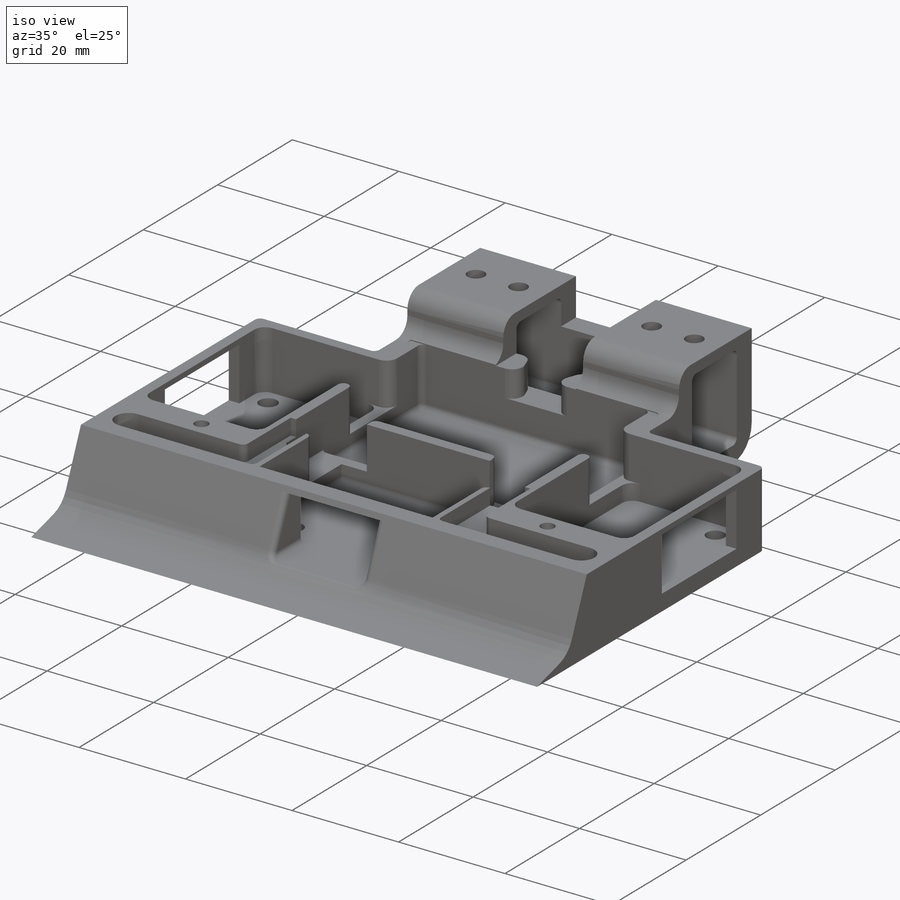
[diagram: iso view]
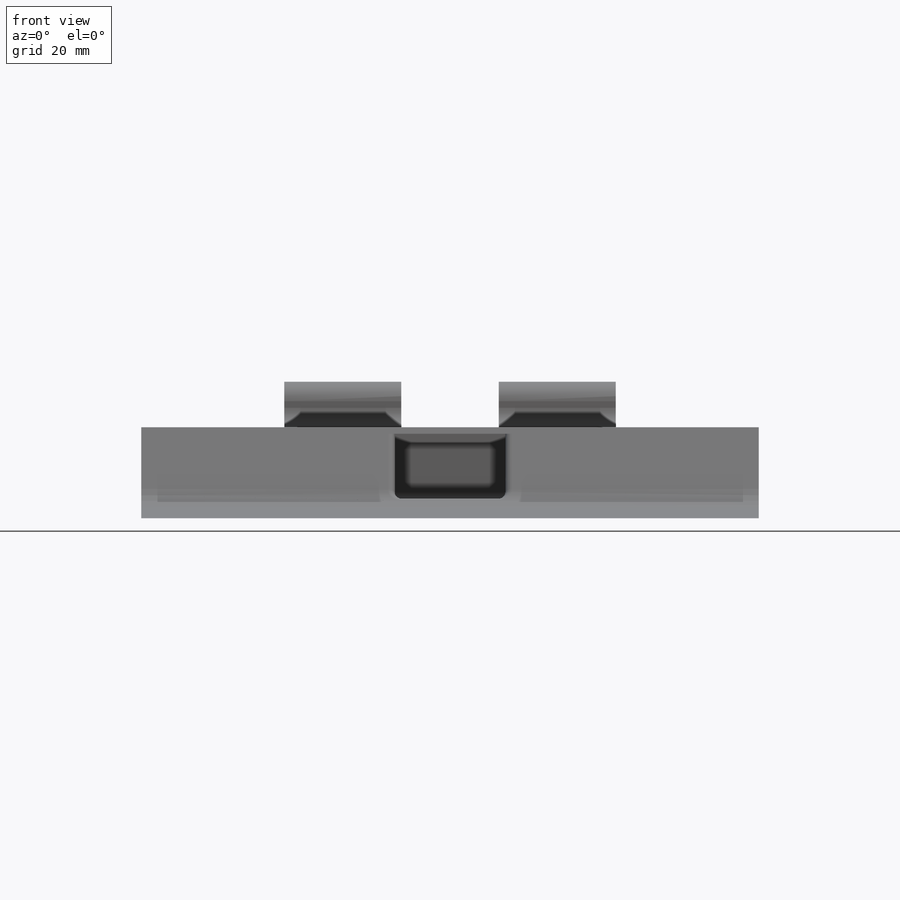
[diagram: front view]
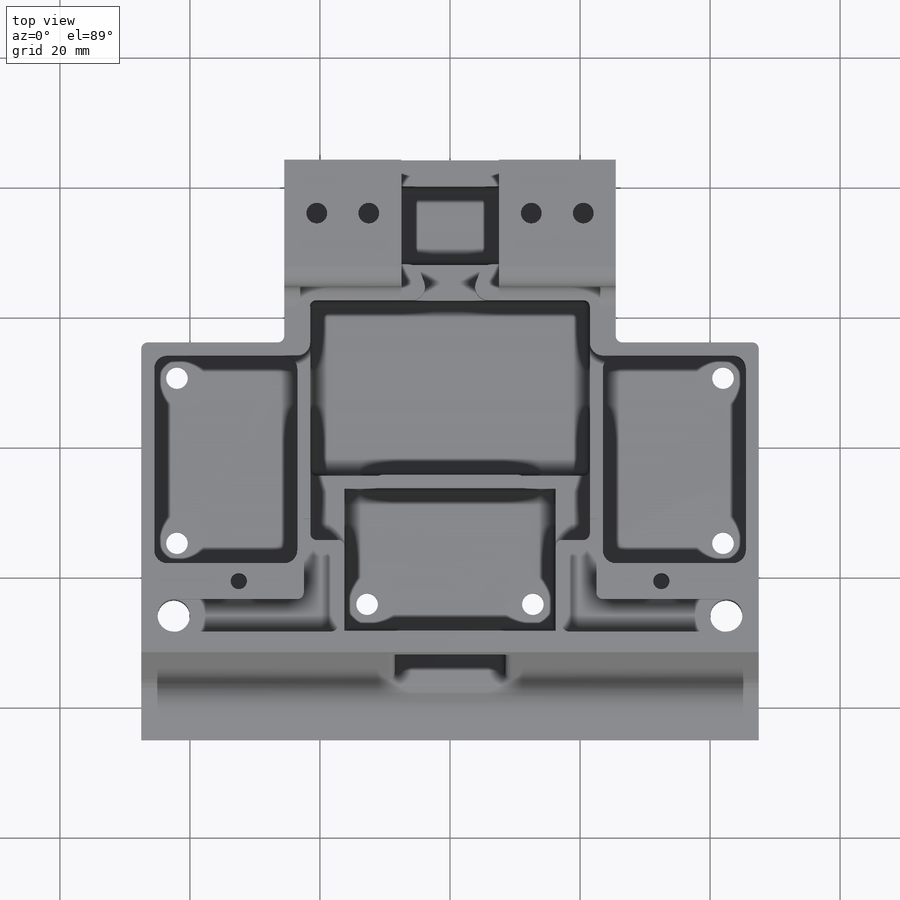
[diagram: top view]
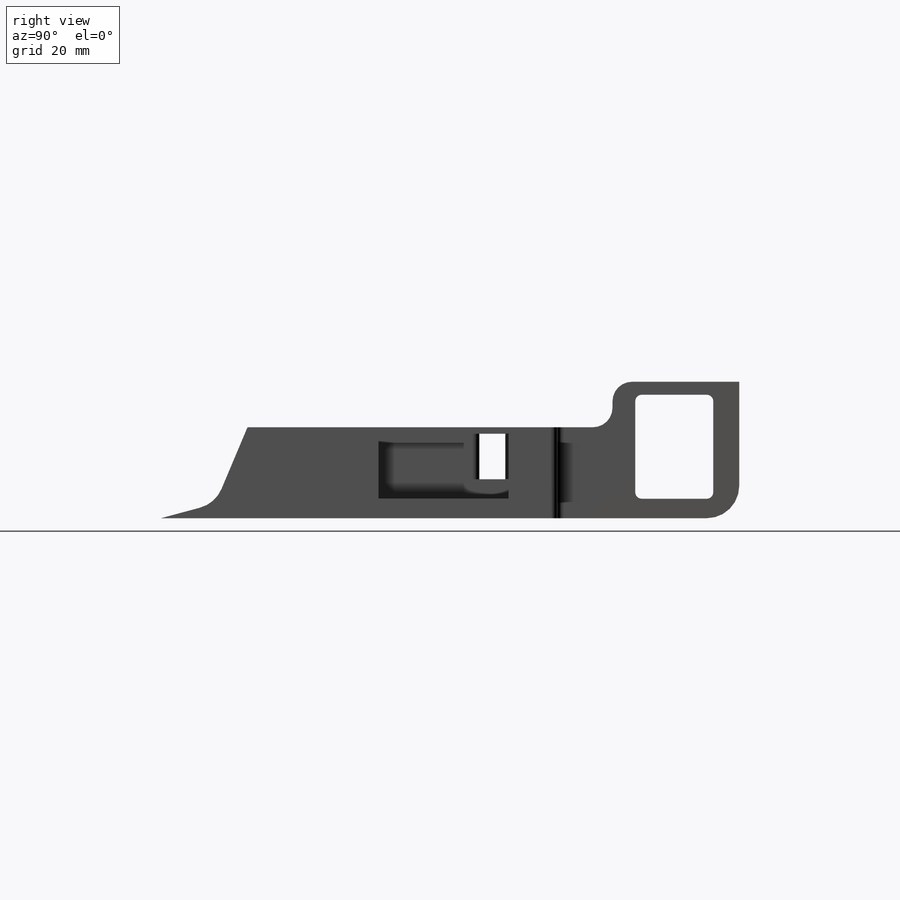
[diagram: right view]
SOLIDWORKS PART (.sldprt)
format: sldprt  version: not decoded by parser v0  size: 2,173,440 bytes
history: native  units: mm
features: sketch x78, cut_extrude x53, extrude x25, fillet x22, material x1 (+12 scaffold rows collapsed)
feature tree (191):
  scaffold x12  (default folders/planes/origin — collapsed)
  material  "Material <not specified>"
  sketch  "Sketch1"  dims[D1=95.0mm D2=90.0mm]
  extrude  "Boss-Extrude1"  Depth=17mm
  sketch  "Sketch6"  dims[D1=17.0mm D2=10.0mm D3=3.0mm D4=39.0mm D5=39.0mm]
  cut_extrude  "Cut-Extrude3"  Depth=100mm
  sketch  "Sketch7"
  cut_extrude  "Cut-Extrude6"  Depth=100mm
  fillet  "Fillet2"  Radius=5mm
  sketch  "Sketch8"  dims[D1=32.5mm D2=22.0mm D3=31.25mm D4=31.25mm D5=2.0mm D6=32.5mm]
  cut_extrude  "Cut-Extrude7"  Depth=14mm
  sketch  "Sketch9"  dims[D1=3.0mm]
  cut_extrude  "Cut-Extrude8"  Depth=100mm
  sketch  "Sketch10"  dims[D1=32.5mm D2=22.0mm D3=2.0mm D4=2.0mm]
  cut_extrude  "Cut-Extrude9"  Depth=11mm
  sketch  "Sketch13"  dims[D1=10.0mm D2=17.0mm D3=7.75mm D4=7.75mm D5=3.0mm]
  cut_extrude  "Cut-Extrude11"  Depth=11mm
  sketch  "Sketch14"  dims[D1=32.5mm D2=22.0mm D3=2.0mm D4=2.0mm]
  cut_extrude  "Cut-Extrude12"  Depth=11mm
  sketch  "Sketch15"  dims[D1=10.0mm D2=17.0mm D3=3.0mm D4=7.75mm]
  cut_extrude  "Cut-Extrude13"  Depth=11mm
  sketch  "Sketch16"  dims[D1=22.0mm D2=14.0mm]
  cut_extrude  "Cut-Extrude15"  Depth=34mm
  sketch  "Sketch17"  dims[D1=22.0mm]
  cut_extrude  "Cut-Extrude16"  Depth=34mm
  sketch  "Sketch19"  dims[D1=30.0mm]
  extrude  "Boss-Extrude2"  Depth=7mm
  sketch  "Sketch21"
  extrude  "Boss-Extrude3"  Depth=5mm
  sketch  "Sketch22"
  extrude  "Boss-Extrude4"  Depth=5mm
  sketch  "Sketch23"
  extrude  "Boss-Extrude5"  Depth=5mm
  sketch  "Sketch25"
  extrude  "Boss-Extrude6"  Depth=2mm
  sketch  "Sketch26"
  extrude  "Boss-Extrude7"  Depth=2mm
  sketch  "Sketch28"  dims[D1=16.0mm D2=12.0mm D3=3.0mm D4=10.0mm]
  cut_extrude  "Cut-Extrude17"  Depth=100mm
  sketch  "Sketch30"
  cut_extrude  "Cut-Extrude18"  Depth=2mm
  sketch  "Sketch31"
  cut_extrude  "Cut-Extrude19"  Depth=2mm
  sketch  "Sketch33"  dims[D1=3.5mm]
  cut_extrude  "Cut-Extrude21"  Depth=100mm
  sketch  "Sketch34"  dims[D1=2.0mm D2=2.0mm D3=4.0mm D4=4.0mm D5=2.0mm D6=2.0mm D7=2.0mm D8=2.0mm D9=2.0mm D10=2.0mm D11=2.0mm D12=2.0mm]
  cut_extrude  "Cut-Extrude23"  Depth=11mm
  sketch  "Sketch36"
  extrude  "Boss-Extrude8"  Depth=11mm
  sketch  "Sketch37"  dims[D1=15.0mm D2=18.0mm D3=18.0mm]
  cut_extrude  "Cut-Extrude24"  Depth=100mm
  sketch  "Sketch38"
  extrude  "Boss-Extrude9"  Depth=11mm
  sketch  "Sketch39"
  extrude  "Boss-Extrude10"  Depth=11mm
  fillet  "Fillet4"  Radius=3mm
  sketch  "Sketch40"  dims[D1=12.0mm D2=7.0mm]
  cut_extrude  "Cut-Extrude25"  Depth=8mm
  sketch  "Sketch41"  dims[D1=12.0mm D2=7.0mm]
  cut_extrude  "Cut-Extrude26"  Depth=8mm
  sketch  "Sketch45"  dims[D1=10.0mm D2=10.0mm D3=10.0mm D4=10.0mm]
  cut_extrude  "Cut-Extrude30"  Depth=8mm
  sketch  "Sketch46"  dims[c1.D1=~3.747102mm c1.D2=~3.747102mm c2.D1=4.0mm]
  cut_extrude  "Cut-Extrude31"  Depth=100mm
  fillet  "Fillet12"  Radius=5mm
  fillet  "Fillet13"  Radius=1mm
  fillet  "Fillet14"  Radius=1mm
  fillet  "Fillet15"  Radius=1mm
  sketch  "Sketch47"  dims[D1=10.0mm D2=2.5mm D3=2.0mm D4=2.0mm]
  cut_extrude  "Cut-Extrude32"  Depth=5mm
  fillet  "Fillet18"  Radius=2mm
  sketch  "Sketch48"  dims[D1=1.0mm D2=1.0mm D3=0.0mm D4=2.0mm]
  cut_extrude  "Cut-Extrude35"  Depth=3mm
  sketch  "Sketch51"  dims[D1=1.0mm D2=1.0mm D3=0.0mm D4=2.0mm D5=5.25mm]
  cut_extrude  "Cut-Extrude36"  Depth=3mm
  sketch  "Sketch53"  dims[D1=2.625mm D2=2.625mm]
  cut_extrude  "Cut-Extrude37"  Depth=100mm
  sketch  "Sketch54"  dims[D1=2.625mm D2=2.625mm]
  cut_extrude  "Cut-Extrude38"  Depth=100mm
  sketch  "Sketch55"  dims[D1=17.0mm D2=9.0mm D3=2.0mm D4=10.0mm]
  cut_extrude  "Cut-Extrude46"  Depth=3mm
  sketch  "Sketch61"
  extrude  "Boss-Extrude12"  Depth=14mm
  sketch  "Sketch62"  dims[D1=32.0mm D2=22.0mm D3=2.0mm D4=0.0mm D5=32.0mm]
  cut_extrude  "Cut-Extrude48"  Depth=11mm
  sketch  "Sketch64"
  extrude  "Boss-Extrude13"  Depth=11mm
  sketch  "Sketch65"  dims[D1=2.0mm]
  cut_extrude  "Cut-Extrude49"  Depth=11mm
  sketch  "Sketch66"  dims[D1=9.0mm D2=17.0mm D3=7.5mm D4=2.0mm D5=3.0mm]
  cut_extrude  "Cut-Extrude50"  Depth=11mm
  sketch  "Sketch67"
  extrude  "Boss-Extrude15"  Depth=12mm
  sketch  "Sketch68"  dims[D1=2.0mm D2=22.0mm D3=32.0mm D4=0.0mm]
  cut_extrude  "Cut-Extrude51"  Depth=11mm
  sketch  "Sketch69"
  extrude  "Boss-Extrude18"  Depth=11mm
  sketch  "Sketch70"
  extrude  "Boss-Extrude19"  Depth=11mm
  sketch  "Sketch72"  dims[D1=32.0mm D2=22.0mm D3=1.0mm D4=2.0mm]
  cut_extrude  "Cut-Extrude53"  Depth=11mm
  sketch  "Sketch73"  dims[D1=20.0mm D2=10.0mm D3=1.5mm D4=1.0mm]
  cut_extrude  "Cut-Extrude55"  Depth=11mm
  sketch  "Sketch74"  dims[D1=20.0mm D2=10.0mm D3=1.0mm D4=5.5mm]
  cut_extrude  "Cut-Extrude56"  Depth=11mm
  sketch  "Sketch75"
  extrude  "Boss-Extrude20"  Depth=3mm
  sketch  "Sketch76"
  extrude  "Boss-Extrude21"  Depth=11mm
  sketch  "Sketch77"
  extrude  "Boss-Extrude22"  Depth=11mm
  sketch  "Sketch78"  dims[D1=20.0mm D2=9.0mm D3=10.0mm D4=2.0mm]
  cut_extrude  "Cut-Extrude58"  Depth=4.5mm
  sketch  "Sketch79"  dims[D1=20.0mm D2=9.0mm D3=10.0mm D4=2.0mm]
  cut_extrude  "Cut-Extrude59"  Depth=4.5mm
  sketch  "Sketch80"  dims[D1=8.0mm D2=5.0mm]
  cut_extrude  "Cut-Extrude60"  Depth=20mm
  sketch  "Sketch81"
  cut_extrude  "Cut-Extrude61"  Depth=3mm
  sketch  "Sketch82"
  extrude  "Boss-Extrude23"  Depth=3mm
  sketch  "Sketch83"  dims[D1=8.0mm D2=5.0mm]
  cut_extrude  "Cut-Extrude62"  Depth=20mm
  sketch  "Sketch84"
  cut_extrude  "Cut-Extrude63"  Depth=3mm
  sketch  "Sketch85"
  extrude  "Boss-Extrude24"  Depth=3mm
  sketch  "Sketch86"  dims[D1=0.0mm D2=2.0mm D3=2.0mm D4=2.0mm]
  cut_extrude  "Cut-Extrude64"  Depth=11mm
  sketch  "Sketch87"
  extrude  "Boss-Extrude27"  Depth=11mm
  sketch  "Sketch88"
  extrude  "Boss-Extrude28"  Depth=11mm
  sketch  "Sketch89"  dims[D1=10.0mm D2=10.0mm]
  cut_extrude  "Cut-Extrude65"  Depth=8mm
  sketch  "Sketch90"  dims[c1.D1=10.0mm c1.D2=~8.701052mm c2.D2=90.0deg c3.D2=~8.701052mm c4.D2=90.0deg c5.D2=10.0mm]
  cut_extrude  "Cut-Extrude66"  Depth=8mm
  sketch  "Sketch91"
  extrude  "Boss-Extrude29"  Depth=8mm
  sketch  "Sketch92"  dims[D1=10.0mm]
  cut_extrude  "Cut-Extrude67"  Depth=8mm
  sketch  "Sketch93"  dims[D1=10.0mm]
  cut_extrude  "Cut-Extrude68"  Depth=8mm
  sketch  "Sketch94"  dims[c1.D1=1666.0mm c1.D3=~2.794888mm c2.D1=3.5mm c2.D2=3.3mm c2.D3=3.5mm c2.D4=3.3mm c2.D5=25.4mm]
  cut_extrude  "Cut-Extrude69"  Depth=8mm
  sketch  "Sketch95"  dims[c1.D1=~2.291108mm c1.D3=~2.749299mm c2.D1=3.5mm c2.D2=3.3mm c2.D3=3.5mm c2.D4=3.3mm c2.D5=25.4mm]
  cut_extrude  "Cut-Extrude70"  Depth=8mm
  sketch  "Sketch96"  dims[c1.D1=~3.495738mm c1.D3=~1.65324mm c2.D1=3.5mm c2.D2=3.3mm c2.D3=3.5mm c2.D4=3.3mm c2.D5=25.5mm]
  cut_extrude  "Cut-Extrude71"  Depth=8mm
  sketch  "Sketch97"  dims[D1=3.0mm D2=4.5mm D3=4.5mm]
  cut_extrude  "Cut-Extrude72"  Depth=8mm
  sketch  "Sketch98"  dims[D1=3.0mm D2=4.5mm]
  cut_extrude  "Cut-Extrude73"  Depth=8mm
  sketch  "Sketch99"  dims[c1.D1=~2.194267mm c1.D4=~1.869179mm c1.D5=~2.051862mm c1.D6=~1.718214mm c1.D7=2.0mm c2.D1=8.25mm c2.D2=8.25mm c2.D3=5.0mm c2.D4=8.0mm c2.D5=13.0mm c2.D6=8.0mm]
  cut_extrude  "Cut-Extrude75"  Depth=5mm
  sketch  "Sketch104"  dims[D1=2.3mm]
  extrude  "Boss-Extrude34"  Depth=9mm
  sketch  "Sketch105"  dims[D1=3.5mm D2=4.5mm]
  cut_extrude  "Cut-Extrude77"  Depth=8mm
  sketch  "Sketch106"
  extrude  "Boss-Extrude35"  Depth=8mm
  sketch  "Sketch107"  dims[D1=3.0mm D2=4.5mm]
  cut_extrude  "Cut-Extrude78"  Depth=8mm
  sketch  "Sketch108"  dims[c1.D1=~1.452611mm c1.D3=~1.452746mm c1.D5=2.5mm c1.D6=2.5mm c2.D1=2.75mm c2.D2=2.75mm c2.D3=65.0mm c2.D4=15.0mm]
  cut_extrude  "Cut-Extrude79"  Depth=8mm
  fillet  "Fillet19"  Radius=2mm
  fillet  "Fillet21"  Radius=1mm
  fillet  "Fillet22"  Radius=2mm
  fillet  "Fillet23"  Radius=1mm
  fillet  "Fillet24"  Radius=1mm
  fillet  "Fillet25"  Radius=1mm
  fillet  "Fillet26"  Radius=2mm
  fillet  "Fillet27"  Radius=1mm
  fillet  "Fillet28"  Radius=1mm
  fillet  "Fillet31"  Radius=1mm
  fillet  "Fillet32"  Radius=1mm
  fillet  "Fillet33"  Radius=1mm
  fillet  "Fillet34"  Radius=1mm
  fillet  "Fillet35"  Radius=1mm
  fillet  "Fillet36"  Radius=1mm
decode coverage: 151 of 178 modeling features carry decoded parameters
note: ~ marks probable driven/reference dimensions
note: suppression state not decoded; provenance and decode notes live in map.json
